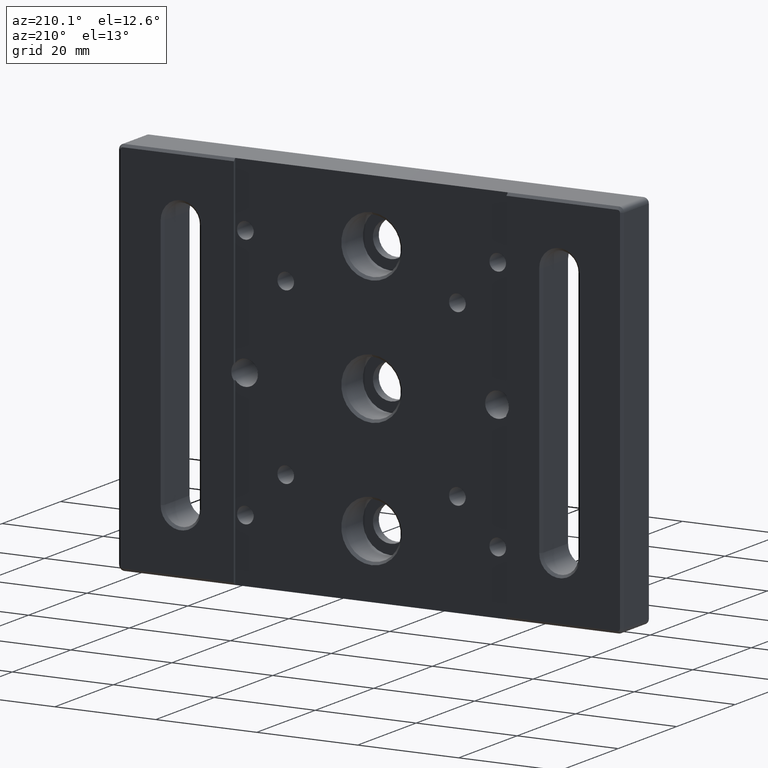
[diagram: clean part render]
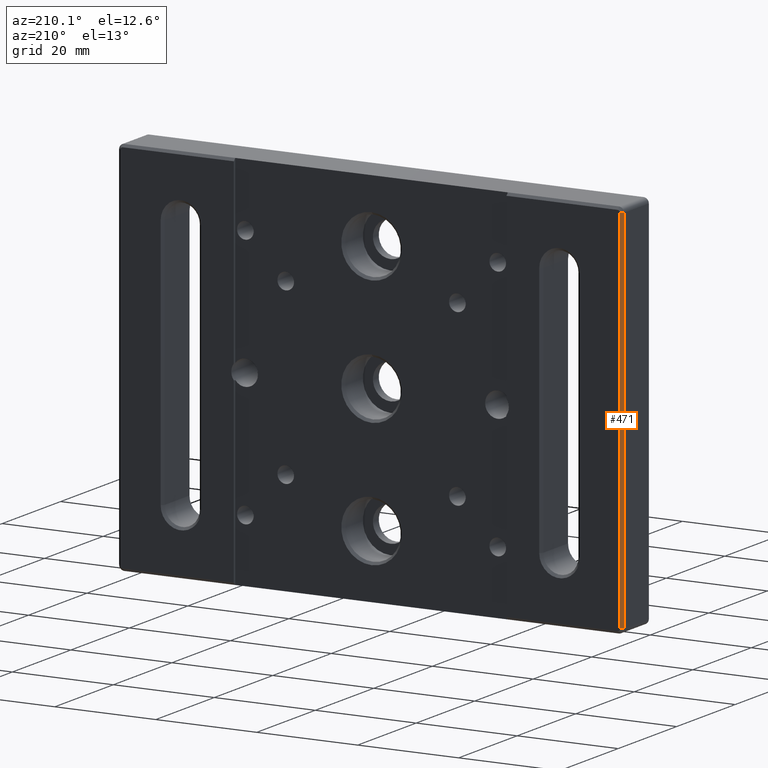
[diagram: same view with one face highlighted and labeled with its STEP entity id]
A machine part, auxiliary view. The second image highlights one B-rep face of the part: STEP entity #471.
In plain terms, the highlighted planar face has unit normal (0.7071, -0.7071, -0).
Its self-contained STEP definition (entity closure, byte-faithful):
#50 = CARTESIAN_POINT ( 'NONE',  ( -3.700743415417187600E-016, 9.000000000000000000, -0.9999999999999995600 ) ) ;
#55 = DIRECTION ( 'NONE',  ( 0.7071067811865474600, 0.7071067811865475700, -3.066586833366745800E-016 ) ) ;
#68 = CARTESIAN_POINT ( 'NONE',  ( 0.4999999999999726900, 9.500000000000000000, -75.00000000000000000 ) ) ;
#73 = PLANE ( 'NONE',  #931 ) ;
#76 = DIRECTION ( 'NONE',  ( 0.7071067811865475700, -0.7071067811865475700, -2.616820764472959000E-016 ) ) ;
#77 = DIRECTION ( 'NONE',  ( 3.700743415417189100E-016, 0.0000000000000000000, 1.000000000000000000 ) ) ;
#341 = EDGE_CURVE ( 'NONE', #2358, #942, #1764, .T. ) ;
#464 = EDGE_CURVE ( 'NONE', #2344, #2379, #1580, .T. ) ;
#471 = ADVANCED_FACE ( 'NONE', ( #1564 ), #73, .F. ) ;
#518 = CARTESIAN_POINT ( 'NONE',  ( -2.738550127408720000E-014, 9.000000000000000000, -74.00000000000000000 ) ) ;
#539 = CARTESIAN_POINT ( 'NONE',  ( 0.5000000000000001100, 9.500000000000000000, -0.9999999999999997800 ) ) ;
#834 = EDGE_CURVE ( 'NONE', #2344, #2358, #1437, .T. ) ;
#850 = EDGE_CURVE ( 'NONE', #942, #2379, #1413, .T. ) ;
#931 = AXIS2_PLACEMENT_3D ( 'NONE', #68, #76, #77 ) ;
#942 = VERTEX_POINT ( 'NONE', #1207 ) ;
#1124 = CARTESIAN_POINT ( 'NONE',  ( 0.0000000000000000000, 9.000000000000000000, 0.0000000000000000000 ) ) ;
#1125 = DIRECTION ( 'NONE',  ( -3.700743415417189100E-016, 0.0000000000000000000, -1.000000000000000000 ) ) ;
#1165 = CARTESIAN_POINT ( 'NONE',  ( 0.4999999999999726900, 9.500000000000000000, -75.00000000000000000 ) ) ;
#1166 = DIRECTION ( 'NONE',  ( 3.700743415417189100E-016, 0.0000000000000000000, 1.000000000000000000 ) ) ;
#1207 = CARTESIAN_POINT ( 'NONE',  ( 0.4999999999999731300, 9.500000000000000000, -74.00000000000000000 ) ) ;
#1371 = CARTESIAN_POINT ( 'NONE',  ( -3.700743415417187600E-016, 9.000000000000000000, -0.9999999999999995600 ) ) ;
#1410 = VECTOR ( 'NONE', #1166, 1000.000000000000000 ) ;
#1413 = LINE ( 'NONE', #1165, #1410 ) ;
#1434 = VECTOR ( 'NONE', #1125, 1000.000000000000000 ) ;
#1437 = LINE ( 'NONE', #1124, #1434 ) ;
#1564 = FACE_OUTER_BOUND ( 'NONE', #2185, .T. ) ;
#1575 = VECTOR ( 'NONE', #55, 1000.000000000000000 ) ;
#1580 = LINE ( 'NONE', #50, #1575 ) ;
#1763 = VECTOR ( 'NONE', #1952, 1000.000000000000000 ) ;
#1764 = LINE ( 'NONE', #1955, #1763 ) ;
#1825 = ORIENTED_EDGE ( 'NONE', *, *, #834, .F. ) ;
#1826 = ORIENTED_EDGE ( 'NONE', *, *, #341, .F. ) ;
#1827 = ORIENTED_EDGE ( 'NONE', *, *, #850, .F. ) ;
#1828 = ORIENTED_EDGE ( 'NONE', *, *, #464, .T. ) ;
#1952 = DIRECTION ( 'NONE',  ( 0.7071067811865476800, 0.7071067811865474600, 0.0000000000000000000 ) ) ;
#1955 = CARTESIAN_POINT ( 'NONE',  ( -2.738550127408720000E-014, 9.000000000000000000, -74.00000000000000000 ) ) ;
#2185 = EDGE_LOOP ( 'NONE', ( #1828, #1827, #1826, #1825 ) ) ;
#2344 = VERTEX_POINT ( 'NONE', #1371 ) ;
#2358 = VERTEX_POINT ( 'NONE', #518 ) ;
#2379 = VERTEX_POINT ( 'NONE', #539 ) ;